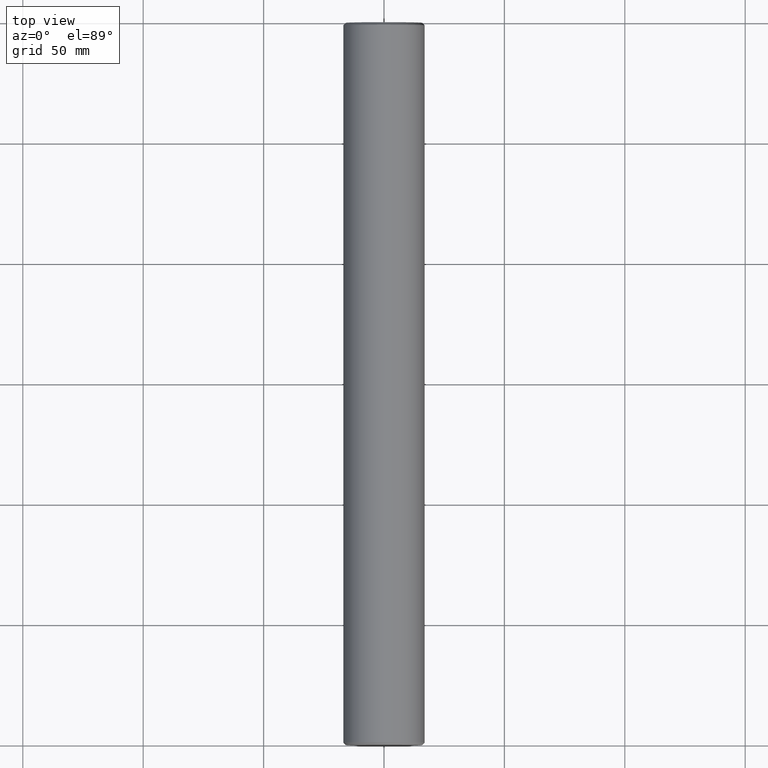
[diagram: clean part render]
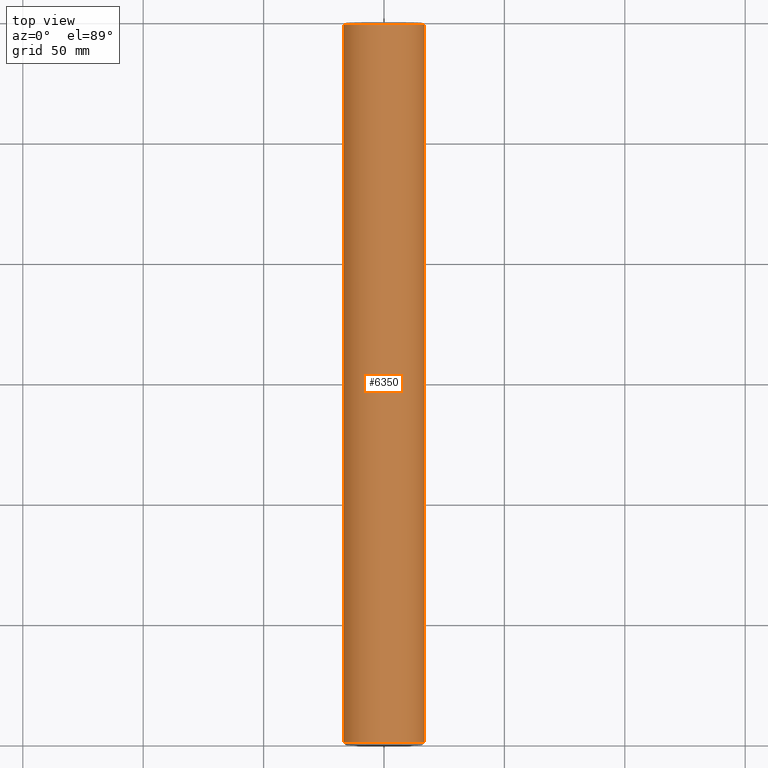
[diagram: same view with one face highlighted and labeled with its STEP entity id]
A machine part, top view. The second image highlights one B-rep face of the part: STEP entity #6350.
In plain terms, the highlighted cylindrical surface (partial cylindrical patch) has radius 16.85 mm, axis along (-0, 1, -0).
Its self-contained STEP definition (entity closure, byte-faithful):
#174 = EDGE_CURVE ( 'NONE', #2722, #15360, #8742, .T. ) ;
#1617 = CARTESIAN_POINT ( 'NONE',  ( -4.286263797015732700E-014, 150.0000000000000000, 0.0000000000000000000 ) ) ;
#1909 = DIRECTION ( 'NONE',  ( -3.061616997868382600E-016, 1.000000000000000000, -0.0000000000000000000 ) ) ;
#2039 = CARTESIAN_POINT ( 'NONE',  ( -16.85000000000010100, 150.0000000000000000, 0.0000000000000000000 ) ) ;
#2136 = EDGE_CURVE ( 'NONE', #15360, #12032, #5564, .T. ) ;
#2360 = CARTESIAN_POINT ( 'NONE',  ( -16.85000000000014700, 149.0000000000000000, 0.0000000000000000000 ) ) ;
#2722 = VERTEX_POINT ( 'NONE', #15669 ) ;
#4416 = DIRECTION ( 'NONE',  ( -1.000000000000000000, 0.0000000000000000000, 0.0000000000000000000 ) ) ;
#4578 = VECTOR ( 'NONE', #8671, 1000.000000000000000 ) ;
#4659 = DIRECTION ( 'NONE',  ( -3.061616997868382600E-016, 1.000000000000000000, -0.0000000000000000000 ) ) ;
#5331 = CARTESIAN_POINT ( 'NONE',  ( 16.85000000000005800, 149.0000000000000000, 2.063529856563300100E-015 ) ) ;
#5564 = LINE ( 'NONE', #9812, #4578 ) ;
#5855 = VECTOR ( 'NONE', #4659, 1000.000000000000000 ) ;
#6098 = EDGE_LOOP ( 'NONE', ( #12878, #15604, #6238, #8025 ) ) ;
#6238 = ORIENTED_EDGE ( 'NONE', *, *, #13287, .F. ) ;
#6350 = ADVANCED_FACE ( 'NONE', ( #14867 ), #9440, .T. ) ;
#7577 = DIRECTION ( 'NONE',  ( -1.000000000000000000, 0.0000000000000000000, 0.0000000000000000000 ) ) ;
#8025 = ORIENTED_EDGE ( 'NONE', *, *, #12129, .F. ) ;
#8619 = LINE ( 'NONE', #2039, #5855 ) ;
#8671 = DIRECTION ( 'NONE',  ( -3.061616997868382600E-016, 1.000000000000000000, -0.0000000000000000000 ) ) ;
#8742 = CIRCLE ( 'NONE', #11027, 16.85000000000001600 ) ;
#9048 = DIRECTION ( 'NONE',  ( -3.061616997868382600E-016, 1.000000000000000000, -0.0000000000000000000 ) ) ;
#9440 = CYLINDRICAL_SURFACE ( 'NONE', #9453, 16.85000000000005800 ) ;
#9453 = AXIS2_PLACEMENT_3D ( 'NONE', #1617, #9048, #4416 ) ;
#9812 = CARTESIAN_POINT ( 'NONE',  ( 16.85000000000001900, 150.0000000000000000, 2.063529856563297300E-015 ) ) ;
#9985 = DIRECTION ( 'NONE',  ( -3.061616997868382600E-016, 1.000000000000000000, -0.0000000000000000000 ) ) ;
#10433 = CIRCLE ( 'NONE', #15668, 16.85000000000010400 ) ;
#11027 = AXIS2_PLACEMENT_3D ( 'NONE', #12600, #9985, #7577 ) ;
#11734 = DIRECTION ( 'NONE',  ( -1.000000000000000000, 0.0000000000000000000, 0.0000000000000000000 ) ) ;
#11797 = CARTESIAN_POINT ( 'NONE',  ( -4.255647627037048900E-014, 149.0000000000000000, 0.0000000000000000000 ) ) ;
#12032 = VERTEX_POINT ( 'NONE', #5331 ) ;
#12129 = EDGE_CURVE ( 'NONE', #2722, #15801, #8619, .T. ) ;
#12600 = CARTESIAN_POINT ( 'NONE',  ( 4.867971026610731000E-014, -149.0000000000000000, 0.0000000000000000000 ) ) ;
#12648 = CARTESIAN_POINT ( 'NONE',  ( 16.85000000000006500, -149.0000000000000000, 2.063529856563292200E-015 ) ) ;
#12878 = ORIENTED_EDGE ( 'NONE', *, *, #174, .T. ) ;
#13287 = EDGE_CURVE ( 'NONE', #15801, #12032, #10433, .T. ) ;
#14867 = FACE_OUTER_BOUND ( 'NONE', #6098, .T. ) ;
#15360 = VERTEX_POINT ( 'NONE', #12648 ) ;
#15604 = ORIENTED_EDGE ( 'NONE', *, *, #2136, .T. ) ;
#15668 = AXIS2_PLACEMENT_3D ( 'NONE', #11797, #1909, #11734 ) ;
#15669 = CARTESIAN_POINT ( 'NONE',  ( -16.84999999999996200, -149.0000000000000000, 0.0000000000000000000 ) ) ;
#15801 = VERTEX_POINT ( 'NONE', #2360 ) ;